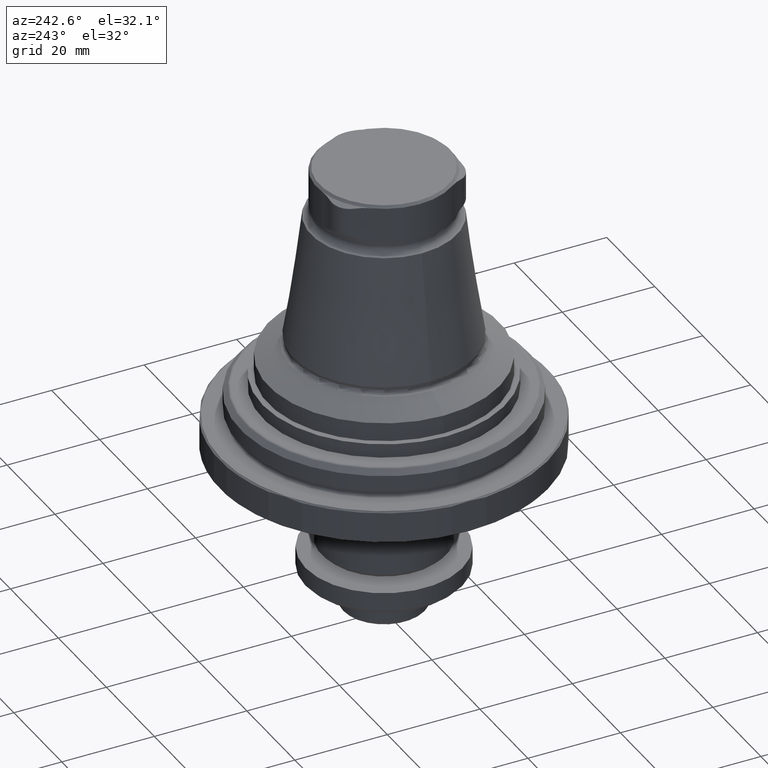
[diagram: clean part render]
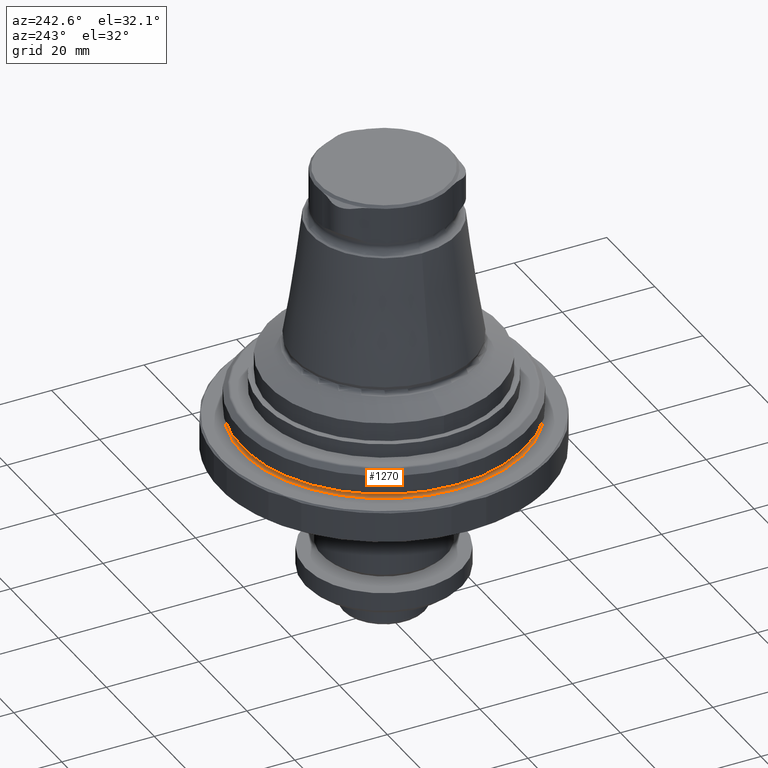
[diagram: same view with one face highlighted and labeled with its STEP entity id]
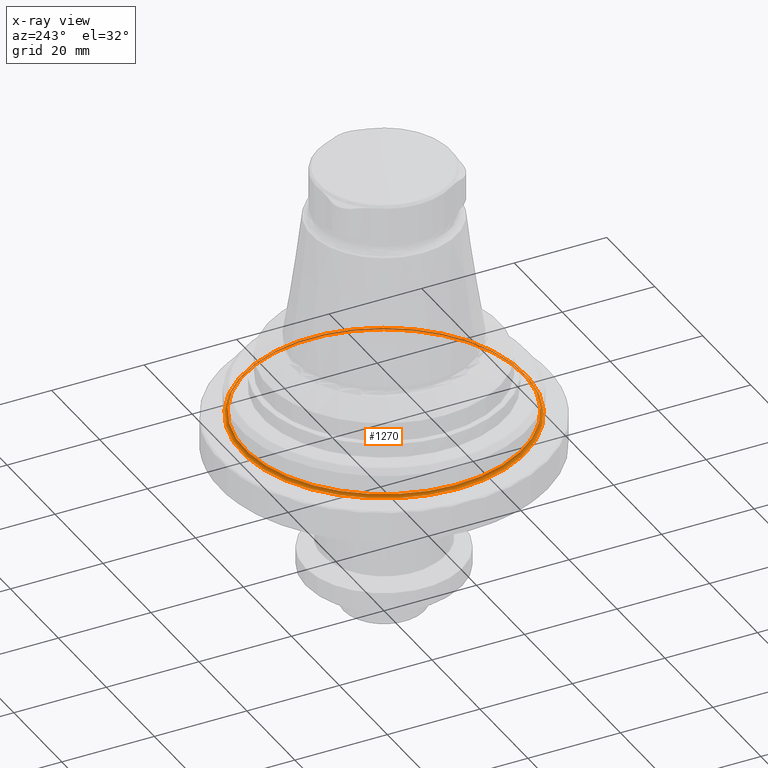
[diagram: x-ray of the same camera — body ghosted, the highlighted face saturated]
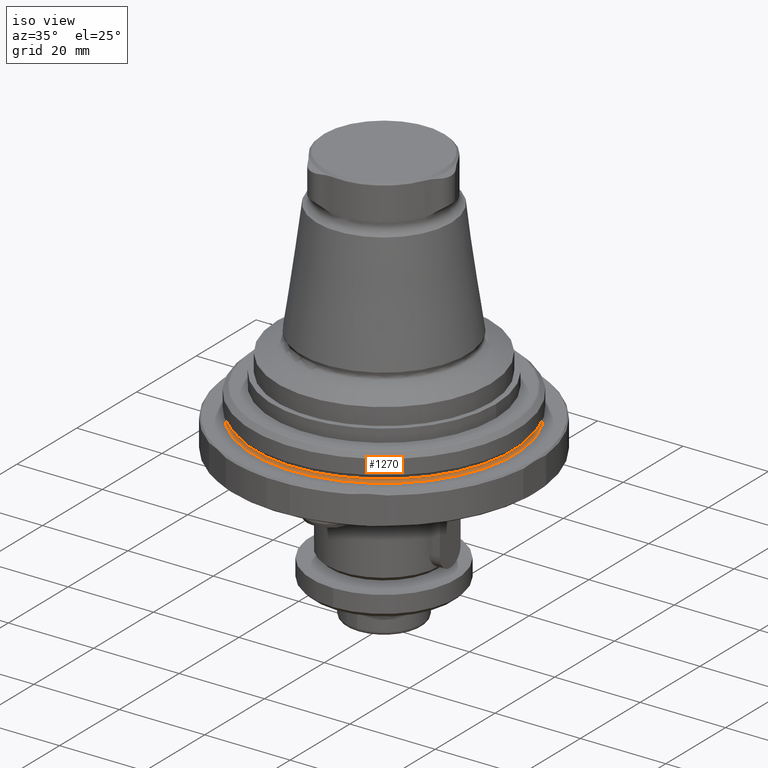
[diagram: same view with one face highlighted and labeled with its STEP entity id]
A machine part, auxiliary view. The second image highlights one B-rep face of the part: STEP entity #1270.
The next image is the same camera in x-ray: the body ghosted, the highlighted face saturated — about 17% of this face is hidden behind the body in this view.
A second angle (iso view) of the same face is appended — the face is thin or edge-on in the first view.
In plain terms, the highlighted toroidal blend (fillet) surface has major radius 30.65 mm and minor (blend) radius 0.6 mm.
Its self-contained STEP definition (entity closure, byte-faithful):
#27=TOROIDAL_SURFACE('',#1428,30.65,0.6);
#97=CIRCLE('',#1411,30.05);
#106=CIRCLE('',#1429,30.65);
#477=ORIENTED_EDGE('',*,*,#697,.F.);
#478=ORIENTED_EDGE('',*,*,#688,.T.);
#688=EDGE_CURVE('',#825,#825,#97,.T.);
#697=EDGE_CURVE('',#834,#834,#106,.T.);
#825=VERTEX_POINT('',#2203);
#834=VERTEX_POINT('',#2230);
#1021=EDGE_LOOP('',(#477));
#1022=EDGE_LOOP('',(#478));
#1151=FACE_BOUND('',#1021,.T.);
#1152=FACE_BOUND('',#1022,.T.);
#1270=ADVANCED_FACE('',(#1151,#1152),#27,.F.);
#1411=AXIS2_PLACEMENT_3D('',#2202,#1712,#1713);
#1428=AXIS2_PLACEMENT_3D('',#2228,#1746,#1747);
#1429=AXIS2_PLACEMENT_3D('',#2229,#1748,#1749);
#1712=DIRECTION('',(0.,1.04225259501902E-17,-1.));
#1713=DIRECTION('',(-1.,0.,0.));
#1746=DIRECTION('',(0.,1.04225259501902E-17,-1.));
#1747=DIRECTION('',(-1.,0.,0.));
#1748=DIRECTION('',(0.,1.04225259501902E-17,-1.));
#1749=DIRECTION('',(-1.,0.,0.));
#2202=CARTESIAN_POINT('',(5.0731267217448E-15,9.27604809566929E-17,-0.398889300106966));
#2203=CARTESIAN_POINT('',(-30.05,9.27604809566929E-17,-0.398889300106966));
#2228=CARTESIAN_POINT('',(5.0731267217448E-15,9.27604809566929E-17,-0.398889300106966));
#2229=CARTESIAN_POINT('',(5.0731267217448E-15,9.90139965268071E-17,-0.998889300106966));
#2230=CARTESIAN_POINT('',(-30.65,9.90139965268071E-17,-0.998889300106966));